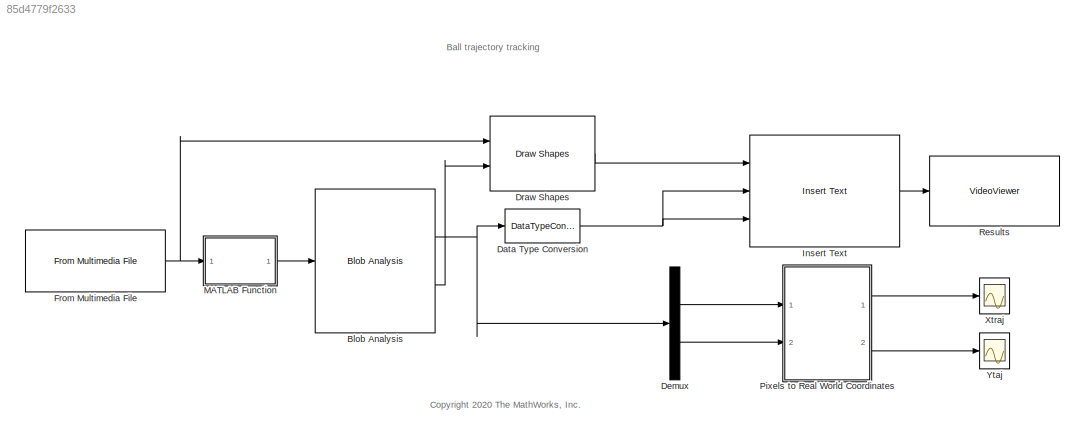
MODEL slx_85d4779f2633
KIND model
CONFIG AbsTol = auto
CONFIG EnableMultiTasking = off
CONFIG FixedStep = 0.0066666666666666666
CONFIG MaxStep = auto
CONFIG MinStep = auto
CONFIG PreLoadFcn = addpath(genpath('Video Files'));
CONFIG RelTol = 1e-3
CONFIG SampleTimeConstraint = Unconstrained
CONFIG Solver = VariableStepAuto
CONFIG SolverName = VariableStepAuto
CONFIG StartTime = 0.0
CONFIG StopTime = 2.8
BLOCK [Reference] Blob Analysis  REF=visionstatistics/Blob Analysis
  Ports = [1, 2]
  SourceBlock = visionstatistics/Blob Analysis
  SourceProductBaseCode = VP
  SourceProductName = Computer Vision System Toolbox
  SourceType = Blob Analysis
  Tag = vipblks_row_conv
BLOCK [DataTypeConversion] Data Type Conversion
  OutDataTypeStr = single
  RndMeth = Floor
  SaturateOnIntegerOverflow = off
BLOCK [Demux] Demux
  DisplayOption = bar
  Outputs = 2
  Ports = [1, 2]
BLOCK [Reference] Draw Shapes  REF=visiontextngfix/Draw Shapes
  Ports = [2, 1]
  SourceBlock = visiontextngfix/Draw Shapes
  SourceProductBaseCode = VP
  SourceProductName = Computer Vision Toolbox
  SourceType = Draw Shapes
BLOCK [Reference] From Multimedia File  REF=dspvision/From Multimedia File
  Ports = [0, 1]
  SourceBlock = dspvision/From Multimedia File
  SourceProductBaseCode = DS
  SourceProductName = DSP System Toolbox
  SourceType = From Multimedia File
BLOCK [Reference] Insert Text  REF=visiontextngfix/Insert Text
  Ports = [3, 1]
  SourceBlock = visiontextngfix/Insert Text
  SourceProductBaseCode = VP
  SourceProductName = Computer Vision Toolbox
  SourceType = Insert Text
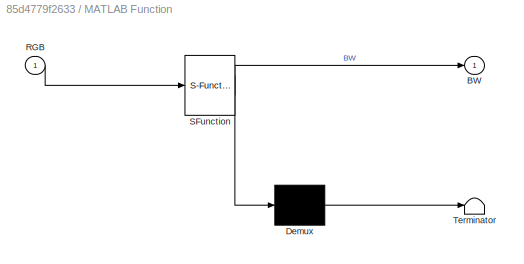
BLOCK [SubSystem] MATLAB Function
  ErrorFcn = Stateflow.Translate.translate
  PermitHierarchicalResolution = ExplicitOnly
  Ports = [1, 1]
  RequestExecContextInheritance = off
  SFBlockType = MATLAB Function
  TreatAsAtomicUnit = on
BLOCK [Demux] MATLAB Function/ Demux 
  Outputs = 1
  Ports = [1, 1]
BLOCK [S-Function] MATLAB Function/ SFunction 
  EnableBusSupport = on
  FunctionName = sf_sfun
  PortCounts = [1 2]
  Ports = [1, 2]
  SFcnIsStateOwnerBlock = off
  SFunctionDeploymentMode = off
  Tag = Stateflow S-Function 2
BLOCK [Terminator] MATLAB Function/ Terminator 
BLOCK [Outport] MATLAB Function/BW
  IconDisplay = Port number
BLOCK [Inport] MATLAB Function/RGB
  IconDisplay = Port number
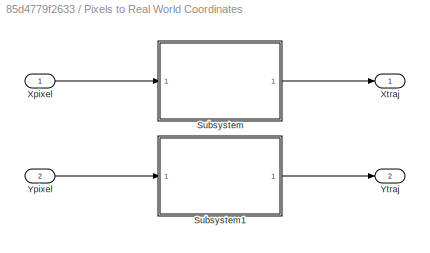
BLOCK [SubSystem] Pixels to Real World Coordinates
  Ports = [2, 2]
  RequestExecContextInheritance = off
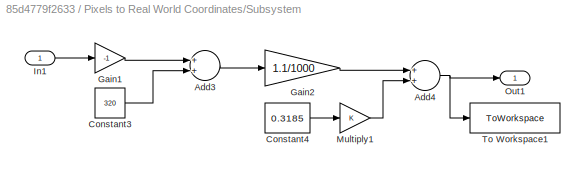
BLOCK [SubSystem] Pixels to Real World Coordinates/Subsystem
  Ports = [1, 1]
  RequestExecContextInheritance = off
BLOCK [Sum] Pixels to Real World Coordinates/Subsystem/Add3
  InputSameDT = off
  OutDataTypeStr = Inherit: Inherit via internal rule
  Ports = [2, 1]
  SaturateOnIntegerOverflow = off
BLOCK [Sum] Pixels to Real World Coordinates/Subsystem/Add4
  InputSameDT = off
  OutDataTypeStr = Inherit: Inherit via internal rule
  Ports = [2, 1]
  SaturateOnIntegerOverflow = off
BLOCK [Constant] Pixels to Real World Coordinates/Subsystem/Constant3
  Value = 320
BLOCK [Constant] Pixels to Real World Coordinates/Subsystem/Constant4
  Value = 0.3185
BLOCK [Gain] Pixels to Real World Coordinates/Subsystem/Gain1
  Gain = -1
  OutDataTypeStr = Inherit: Inherit via internal rule
  ParamDataTypeStr = Inherit: Inherit via internal rule
  SaturateOnIntegerOverflow = off
BLOCK [Gain] Pixels to Real World Coordinates/Subsystem/Gain2
  Gain = 1.1/1000
  OutDataTypeStr = Inherit: Inherit via internal rule
  ParamDataTypeStr = Inherit: Inherit via internal rule
  SaturateOnIntegerOverflow = off
BLOCK [Inport] Pixels to Real World Coordinates/Subsystem/In1
  IconDisplay = Port number
BLOCK [Gain] Pixels to Real World Coordinates/Subsystem/Multiply1
  OutDataTypeStr = Inherit: Inherit via internal rule
  ParamDataTypeStr = Inherit: Inherit via internal rule
  SaturateOnIntegerOverflow = off
BLOCK [Outport] Pixels to Real World Coordinates/Subsystem/Out1
  IconDisplay = Port number
BLOCK [ToWorkspace] Pixels to Real World Coordinates/Subsystem/To Workspace1
  FixptAsFi = on
  MaxDataPoints = inf
  Ports = [1]
  SampleTime = -1
  Save2DSignal = 2-D array (concatenate along first dimension)
  VariableName = ballXtraj
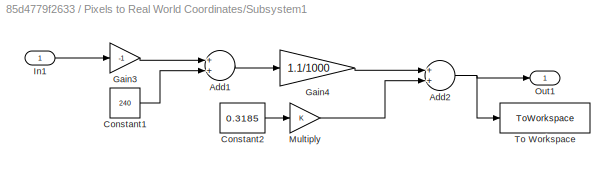
BLOCK [SubSystem] Pixels to Real World Coordinates/Subsystem1
  Ports = [1, 1]
  RequestExecContextInheritance = off
BLOCK [Sum] Pixels to Real World Coordinates/Subsystem1/Add1
  InputSameDT = off
  OutDataTypeStr = Inherit: Inherit via internal rule
  Ports = [2, 1]
  SaturateOnIntegerOverflow = off
BLOCK [Sum] Pixels to Real World Coordinates/Subsystem1/Add2
  InputSameDT = off
  OutDataTypeStr = Inherit: Inherit via internal rule
  Ports = [2, 1]
  SaturateOnIntegerOverflow = off
BLOCK [Constant] Pixels to Real World Coordinates/Subsystem1/Constant1
  Value = 240
BLOCK [Constant] Pixels to Real World Coordinates/Subsystem1/Constant2
  Value = 0.3185
BLOCK [Gain] Pixels to Real World Coordinates/Subsystem1/Gain3
  Gain = -1
  OutDataTypeStr = Inherit: Inherit via internal rule
  ParamDataTypeStr = Inherit: Inherit via internal rule
  SaturateOnIntegerOverflow = off
BLOCK [Gain] Pixels to Real World Coordinates/Subsystem1/Gain4
  Gain = 1.1/1000
  OutDataTypeStr = Inherit: Inherit via internal rule
  ParamDataTypeStr = Inherit: Inherit via internal rule
  SaturateOnIntegerOverflow = off
BLOCK [Inport] Pixels to Real World Coordinates/Subsystem1/In1
  IconDisplay = Port number
BLOCK [Gain] Pixels to Real World Coordinates/Subsystem1/Multiply
  OutDataTypeStr = Inherit: Inherit via internal rule
  ParamDataTypeStr = Inherit: Inherit via internal rule
  SaturateOnIntegerOverflow = off
BLOCK [Outport] Pixels to Real World Coordinates/Subsystem1/Out1
  IconDisplay = Port number
BLOCK [ToWorkspace] Pixels to Real World Coordinates/Subsystem1/To Workspace
  FixptAsFi = on
  MaxDataPoints = inf
  Ports = [1]
  SampleTime = -1
  Save2DSignal = 2-D array (concatenate along first dimension)
  VariableName = ballYtraj
BLOCK [Inport] Pixels to Real World Coordinates/Xpixel
  IconDisplay = Port number
BLOCK [Outport] Pixels to Real World Coordinates/Xtraj
  IconDisplay = Port number
BLOCK [Inport] Pixels to Real World Coordinates/Ypixel
  IconDisplay = Port number
  Port = 2
BLOCK [Outport] Pixels to Real World Coordinates/Ytraj
  IconDisplay = Port number
  Port = 2
BLOCK [VideoViewer] Results
  FigPos = [58 645 479 446]
  Ports = [1]
  ScopeSpecificationString = vipscopes.VideoViewerScopeCfg('CurrentConfiguration', extmgr.ConfigurationSet(extmgr.Configuration('Core','General UI',true,'ShowPlaybackToolbar',false,'ShowSaveConfigSet',true,'FigureProperties',[],'MessageLogAutoOpenMode','for warn/fail messages'),extmgr.Configuration('Core','Source UI',true,'PlaybackToolbar',true),extmgr.Configuration('Sources','WiredSimulink',true),extmgr.Configuration('Source...<+496ch>
  colormapValue = gray(256)
  trueSizedOnce = on
BLOCK [Scope] Xtraj
  Floating = off
  NumInputPorts = 1
  Ports = [1]
  ScopeSpecificationString = Simulink.scopes.TimeScopeBlockCfg('CurrentConfiguration', extmgr.ConfigurationSet(extmgr.Configuration('Core','General UI',true),extmgr.Configuration('Core','Source UI',true),extmgr.Configuration('Sources','WiredSimulink',true,'DataLoggingVariableName','ScopeData1'),extmgr.Configuration('Visuals','Time Domain',true,'SerializedDisplays',{struct('MinYLimReal','-0.0184','MaxYLimReal','0.16081','YLabe...<+1457ch>
BLOCK [Scope] Ytaj
  Floating = off
  NumInputPorts = 1
  Ports = [1]
  ScopeSpecificationString = Simulink.scopes.TimeScopeBlockCfg('CurrentConfiguration', extmgr.ConfigurationSet(extmgr.Configuration('Core','General UI',true),extmgr.Configuration('Core','Source UI',true),extmgr.Configuration('Sources','WiredSimulink',true),extmgr.Configuration('Visuals','Time Domain',true,'SerializedDisplays',{struct('MinYLimReal','-0.06672','MaxYLimReal','0.57885','YLabelReal','','MinYLimMag','0.00000','MaxY...<+1420ch>
ANNOTATION (root): Ball trajectory tracking
ANNOTATION (root): <copyright redacted>
NET Blob Analysis:1 -> Data Type Conversion:1, Demux:1
LINE Blob Analysis:2 -> Draw Shapes:2
NET Data Type Conversion:1 -> Insert Text:2, Insert Text:3
LINE Demux:1 -> Pixels to Real World Coordinates:1
LINE Demux:2 -> Pixels to Real World Coordinates:2
LINE Draw Shapes:1 -> Insert Text:1
NET From Multimedia File:1 -> Draw Shapes:1, MATLAB Function:1
LINE Insert Text:1 -> Results:1
LINE MATLAB Function:1 -> Blob Analysis:1
LINE Pixels to Real World Coordinates/Subsystem/Add3:1 -> Pixels to Real World Coordinates/Subsystem/Gain2:1
NET Pixels to Real World Coordinates/Subsystem/Add4:1 -> Pixels to Real World Coordinates/Subsystem/Out1:1, Pixels to Real World Coordinates/Subsystem/To Workspace1:1
LINE Pixels to Real World Coordinates/Subsystem/Constant3:1 -> Pixels to Real World Coordinates/Subsystem/Add3:2
LINE Pixels to Real World Coordinates/Subsystem/Constant4:1 -> Pixels to Real World Coordinates/Subsystem/Multiply1:1
LINE Pixels to Real World Coordinates/Subsystem/Gain1:1 -> Pixels to Real World Coordinates/Subsystem/Add3:1
LINE Pixels to Real World Coordinates/Subsystem/Gain2:1 -> Pixels to Real World Coordinates/Subsystem/Add4:1
LINE Pixels to Real World Coordinates/Subsystem/In1:1 -> Pixels to Real World Coordinates/Subsystem/Gain1:1
LINE Pixels to Real World Coordinates/Subsystem/Multiply1:1 -> Pixels to Real World Coordinates/Subsystem/Add4:2
LINE Pixels to Real World Coordinates/Subsystem1/Add1:1 -> Pixels to Real World Coordinates/Subsystem1/Gain4:1
NET Pixels to Real World Coordinates/Subsystem1/Add2:1 -> Pixels to Real World Coordinates/Subsystem1/Out1:1, Pixels to Real World Coordinates/Subsystem1/To Workspace:1
LINE Pixels to Real World Coordinates/Subsystem1/Constant1:1 -> Pixels to Real World Coordinates/Subsystem1/Add1:2
LINE Pixels to Real World Coordinates/Subsystem1/Constant2:1 -> Pixels to Real World Coordinates/Subsystem1/Multiply:1
LINE Pixels to Real World Coordinates/Subsystem1/Gain3:1 -> Pixels to Real World Coordinates/Subsystem1/Add1:1
LINE Pixels to Real World Coordinates/Subsystem1/Gain4:1 -> Pixels to Real World Coordinates/Subsystem1/Add2:1
LINE Pixels to Real World Coordinates/Subsystem1/In1:1 -> Pixels to Real World Coordinates/Subsystem1/Gain3:1
LINE Pixels to Real World Coordinates/Subsystem1/Multiply:1 -> Pixels to Real World Coordinates/Subsystem1/Add2:2
LINE Pixels to Real World Coordinates/Subsystem1:1 -> Pixels to Real World Coordinates/Ytraj:1
LINE Pixels to Real World Coordinates/Subsystem:1 -> Pixels to Real World Coordinates/Xtraj:1
LINE Pixels to Real World Coordinates/Xpixel:1 -> Pixels to Real World Coordinates/Subsystem:1
LINE Pixels to Real World Coordinates/Ypixel:1 -> Pixels to Real World Coordinates/Subsystem1:1
LINE Pixels to Real World Coordinates:1 -> Xtraj:1
LINE Pixels to Real World Coordinates:2 -> Ytaj:1
note: NET lines group one-source signal fan-out (src -> all destinations, sorted); 1:1 wires keep LINE
CHART MATLAB Function states=1 transitions=1
  STATE_LABEL 'eML_blk_kernel()'
  STATE_LABEL 'SCRIPT:\nfunction BW  = createMask(RGB)\n\n\n% Convert RGB image to chosen color space\nI = rgb2lab(RGB);\n\n% Define thresholds for channel 1 based on histogram settings\nchannel1Min = 11.905;\nchannel1Max = 93.427;\n\n% Define thresholds for channel 2 based on histogram settings\nchannel2Min = -19.872;\nchannel2Max = -4.610;\n\n% Define thresholds for channel 3 based on histogram settings\nchannel3Min = 14.220;...<+287ch>'
